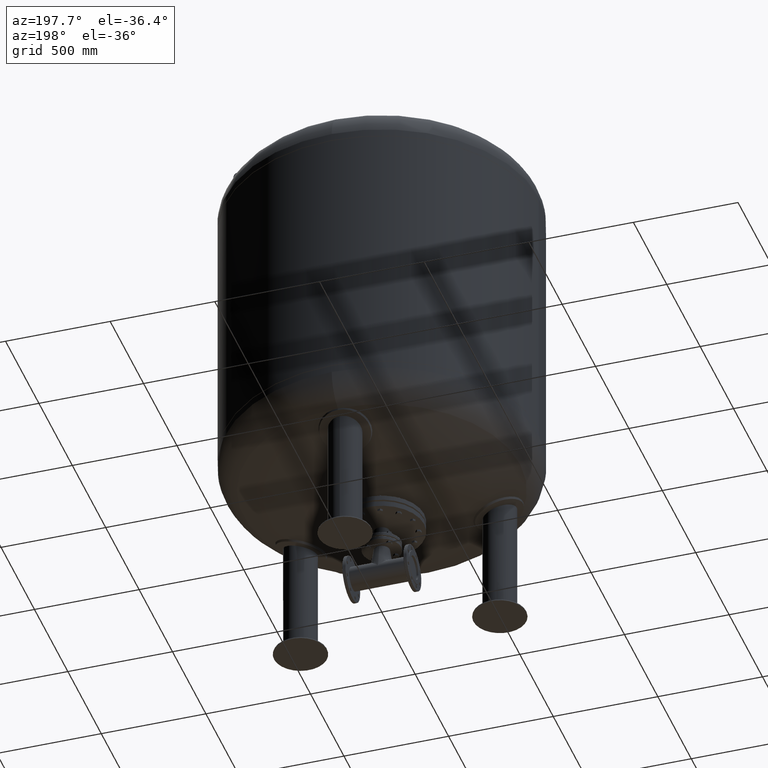
[diagram: clean part render]
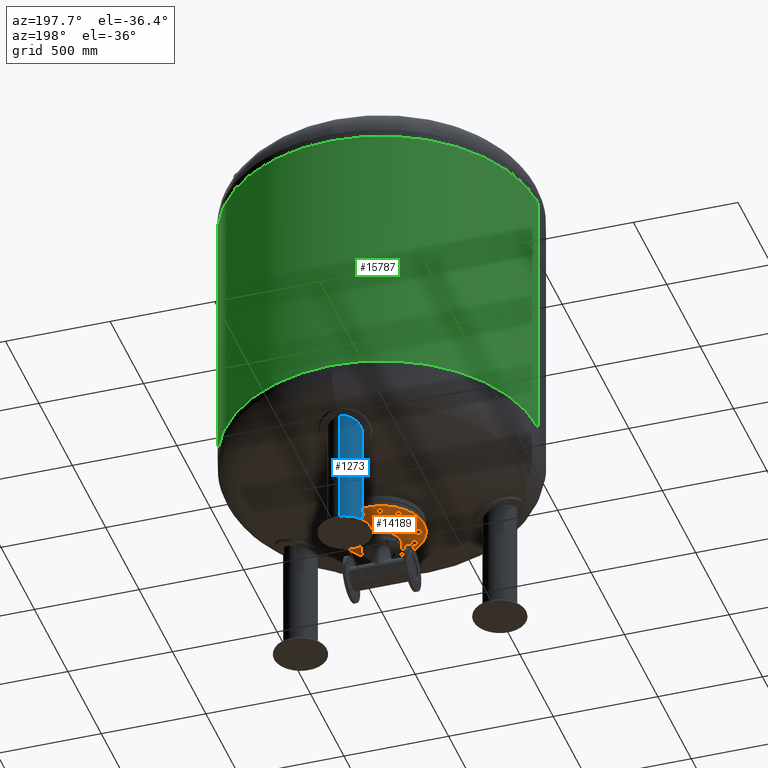
[diagram: same view with three faces highlighted in distinct colors, each labeled with its STEP entity id]
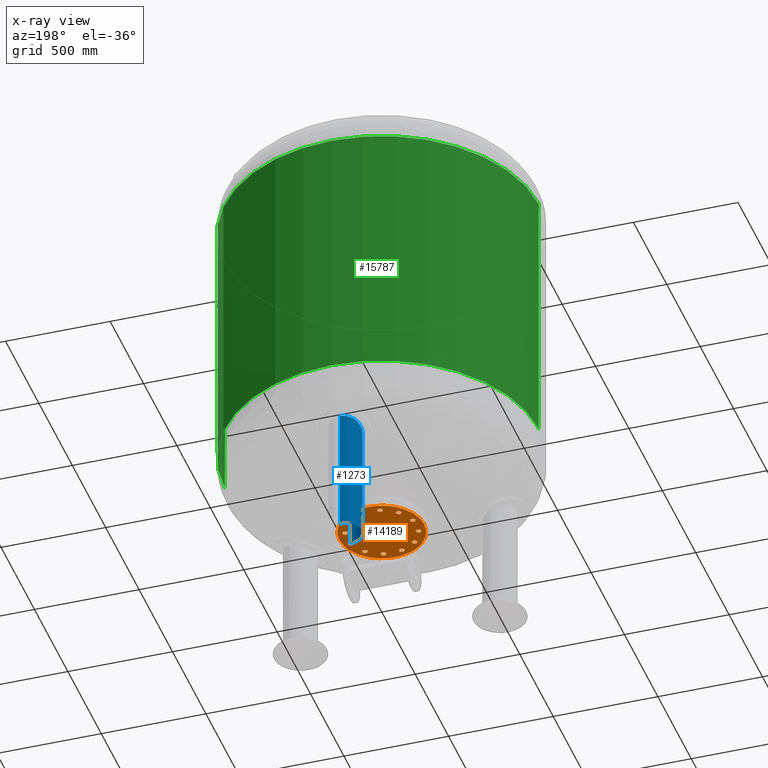
[diagram: x-ray of the same camera — body ghosted, the three highlighted faces saturated]
A machine part, auxiliary view with three faces highlighted in distinct colors.
The next image is the same camera in x-ray (body ghosted, the three faces saturated) — at least one of them is partly hidden behind the body in this view.
Their STEP definitions:

[orange] entity #14189 — the highlighted planar face has unit normal (0, 0, -1).
#5625=CARTESIAN_POINT('',(202.500000000000000,-9.184851E-015,406.0));
#5626=VERTEX_POINT('',#5625);
#5642=CARTESIAN_POINT('',(-202.500000000000000,-3.398313E-014,406.0));
#5643=VERTEX_POINT('',#5642);
#5650=CARTESIAN_POINT('',(0.0,-9.184851E-015,406.0));
#5651=DIRECTION('',(0.0,0.0,1.0));
#5652=DIRECTION('',(1.0,0.0,0.0));
#5653=AXIS2_PLACEMENT_3D('',#5650,#5651,#5652);
#5654=CIRCLE('',#5653,202.500000000000000);
#5655=EDGE_CURVE('',#5643,#5626,#5654,.T.);
#7605=CARTESIAN_POINT('',(0.0,38.049999999999990,406.0));
#7606=VERTEX_POINT('',#7605);
#7622=CARTESIAN_POINT('',(-4.659627E-015,-38.050000000000011,406.0));
#7623=VERTEX_POINT('',#7622);
#7630=CARTESIAN_POINT('',(0.0,-9.184851E-015,406.0));
#7631=DIRECTION('',(0.0,0.0,1.0));
#7632=DIRECTION('',(0.0,1.0,0.0));
#7633=AXIS2_PLACEMENT_3D('',#7630,#7631,#7632);
#7634=CIRCLE('',#7633,38.049999999999997);
#7635=EDGE_CURVE('',#7606,#7623,#7634,.T.);
#7646=CARTESIAN_POINT('',(0.0,-9.184851E-015,406.0));
#7647=DIRECTION('',(0.0,0.0,1.0));
#7648=DIRECTION('',(0.0,1.0,0.0));
#7649=AXIS2_PLACEMENT_3D('',#7646,#7647,#7648);
#7650=CIRCLE('',#7649,38.049999999999997);
#7651=EDGE_CURVE('',#7623,#7606,#7650,.T.);
#11679=CARTESIAN_POINT('',(-157.729139400922860,30.104983413641001,406.0));
#11680=VERTEX_POINT('',#11679);
#11681=CARTESIAN_POINT('',(-148.288440171855850,40.247625971983254,406.0));
#11682=VERTEX_POINT('',#11681);
#11683=CARTESIAN_POINT('',(-157.729139400922860,30.104983413641001,406.0));
#11684=DIRECTION('',(0.681323780155013,0.731982176419128,0.0));
#11685=VECTOR('',#11684,13.856406460551087);
#11686=LINE('',#11683,#11685);
#11687=EDGE_CURVE('',#11680,#11682,#11686,.T.);
#11719=CARTESIAN_POINT('',(-171.233275132485970,33.209547496330096,406.0));
#11720=VERTEX_POINT('',#11719);
#11721=CARTESIAN_POINT('',(-171.233275132485970,33.209547496330096,406.0));
#11722=DIRECTION('',(0.974577049973894,-0.224052613607122,0.0));
#11723=VECTOR('',#11722,13.856406460551117);
#11724=LINE('',#11721,#11723);
#11725=EDGE_CURVE('',#11720,#11680,#11724,.T.);
#11750=CARTESIAN_POINT('',(-175.296711634982050,46.456754137361408,406.0));
#11751=VERTEX_POINT('',#11750);
#11752=CARTESIAN_POINT('',(-175.296711634982050,46.456754137361408,406.0));
#11753=DIRECTION('',(0.293253269818881,-0.956034790026249,0.0));
#11754=VECTOR('',#11753,13.856406460551076);
#11755=LINE('',#11752,#11754);
#11756=EDGE_CURVE('',#11751,#11720,#11755,.T.);
#11781=CARTESIAN_POINT('',(-152.351876674351930,53.494832613014573,406.0));
#11782=VERTEX_POINT('',#11781);
#11783=CARTESIAN_POINT('',(-148.288440171855850,40.247625971983254,406.0));
#11784=DIRECTION('',(-0.293253269818881,0.956034790026249,0.0));
#11785=VECTOR('',#11784,13.856406460551083);
#11786=LINE('',#11783,#11785);
#11787=EDGE_CURVE('',#11682,#11782,#11786,.T.);
#11812=CARTESIAN_POINT('',(-165.856012405915040,56.599396695703675,406.0));
#11813=VERTEX_POINT('',#11812);
#11814=CARTESIAN_POINT('',(-152.351876674351930,53.494832613014573,406.0));
#11815=DIRECTION('',(-0.974577049973894,0.224052613607123,0.0));
#11816=VECTOR('',#11815,13.856406460551119);
#11817=LINE('',#11814,#11816);
#11818=EDGE_CURVE('',#11782,#11813,#11817,.T.);
#11843=CARTESIAN_POINT('',(-165.856012405915040,56.599396695703675,406.0));
#11844=DIRECTION('',(-0.681323780155012,-0.731982176419129,0.0));
#11845=VECTOR('',#11844,13.856406460551096);
#11846=LINE('',#11843,#11845);
#11847=EDGE_CURVE('',#11813,#11751,#11846,.T.);
#11879=CARTESIAN_POINT('',(-121.544949931435720,104.936250117183760,406.0));
#11880=VERTEX_POINT('',#11879);
#11881=CARTESIAN_POINT('',(-108.297743290404380,108.999686619679820,406.0));
#11882=VERTEX_POINT('',#11881);
#11883=CARTESIAN_POINT('',(-121.544949931435720,104.936250117183760,406.0));
#11884=DIRECTION('',(0.956034790026250,0.293253269818880,0.0));
#11885=VECTOR('',#11884,13.856406460551101);
#11886=LINE('',#11883,#11885);
#11887=EDGE_CURVE('',#11880,#11882,#11886,.T.);
#11919=CARTESIAN_POINT('',(-131.687592489777960,114.376949346250780,406.0));
#11920=VERTEX_POINT('',#11919);
#11921=CARTESIAN_POINT('',(-131.687592489777960,114.376949346250780,406.0));
#11922=DIRECTION('',(0.731982176419127,-0.681323780155014,0.0));
#11923=VECTOR('',#11922,13.856406460551080);
#11924=LINE('',#11921,#11923);
#11925=EDGE_CURVE('',#11920,#11880,#11924,.T.);
#11950=CARTESIAN_POINT('',(-128.583028407088880,127.881085077813880,406.0));
#11951=VERTEX_POINT('',#11950);
#11952=CARTESIAN_POINT('',(-128.583028407088880,127.881085077813880,406.0));
#11953=DIRECTION('',(-0.224052613607122,-0.974577049973894,0.0));
#11954=VECTOR('',#11953,13.856406460551099);
#11955=LINE('',#11952,#11954);
#11956=EDGE_CURVE('',#11951,#11920,#11955,.T.);
#11981=CARTESIAN_POINT('',(-105.193179207715300,122.503822351242900,406.0));
#11982=VERTEX_POINT('',#11981);
#11983=CARTESIAN_POINT('',(-108.297743290404380,108.999686619679820,406.0));
#11984=DIRECTION('',(0.224052613607122,0.974577049973894,0.0));
#11985=VECTOR('',#11984,13.856406460551087);
#11986=LINE('',#11983,#11985);
#11987=EDGE_CURVE('',#11882,#11982,#11986,.T.);
#12012=CARTESIAN_POINT('',(-115.335821766057560,131.944521580309950,406.0));
#12013=VERTEX_POINT('',#12012);
#12014=CARTESIAN_POINT('',(-105.193179207715300,122.503822351242900,406.0));
#12015=DIRECTION('',(-0.731982176419127,0.681323780155014,0.0));
#12016=VECTOR('',#12015,13.856406460551121);
#12017=LINE('',#12014,#12016);
#12018=EDGE_CURVE('',#11982,#12013,#12017,.T.);
#12043=CARTESIAN_POINT('',(-115.335821766057560,131.944521580309950,406.0));
#12044=DIRECTION('',(-0.956034790026249,-0.293253269818881,0.0));
#12045=VECTOR('',#12044,13.856406460551076);
#12046=LINE('',#12043,#12045);
#12047=EDGE_CURVE('',#12013,#11951,#12046,.T.);
#12079=CARTESIAN_POINT('',(-52.792889283739193,151.649933345076730,406.0));
#12080=VERTEX_POINT('',#12079);
#12081=CARTESIAN_POINT('',(-39.288753552176118,148.545369262387680,406.0));
#12082=VERTEX_POINT('',#12081);
#12083=CARTESIAN_POINT('',(-52.792889283739193,151.649933345076730,406.0));
#12084=DIRECTION('',(0.974577049973894,-0.224052613607120,0.0));
#12085=VECTOR('',#12084,13.856406460551073);
#12086=LINE('',#12083,#12085);
#12087=EDGE_CURVE('',#12080,#12082,#12086,.T.);
#12119=CARTESIAN_POINT('',(-56.856325786235274,164.897139986108100,406.0));
#12120=VERTEX_POINT('',#12119);
#12121=CARTESIAN_POINT('',(-56.856325786235274,164.897139986108100,406.0));
#12122=DIRECTION('',(0.293253269818881,-0.956034790026249,0.0));
#12123=VECTOR('',#12122,13.856406460551133);
#12124=LINE('',#12121,#12123);
#12125=EDGE_CURVE('',#12120,#12080,#12124,.T.);
#12150=CARTESIAN_POINT('',(-47.415626557168267,175.039782544450330,406.0));
#12151=VERTEX_POINT('',#12150);
#12152=CARTESIAN_POINT('',(-47.415626557168267,175.039782544450330,406.0));
#12153=DIRECTION('',(-0.681323780155014,-0.731982176419128,0.0));
#12154=VECTOR('',#12153,13.856406460551069);
#12155=LINE('',#12152,#12154);
#12156=EDGE_CURVE('',#12151,#12120,#12155,.T.);
#12181=CARTESIAN_POINT('',(-29.848054323109103,158.688011820729910,406.0));
#12182=VERTEX_POINT('',#12181);
#12183=CARTESIAN_POINT('',(-39.288753552176118,148.545369262387680,406.0));
#12184=DIRECTION('',(0.681323780155014,0.731982176419127,0.0));
#12185=VECTOR('',#12184,13.856406460551076);
#12186=LINE('',#12183,#12185);
#12187=EDGE_CURVE('',#12082,#12182,#12186,.T.);
#12212=CARTESIAN_POINT('',(-33.911490825605156,171.935218461761250,406.0));
#12213=VERTEX_POINT('',#12212);
#12214=CARTESIAN_POINT('',(-29.848054323109103,158.688011820729910,406.0));
#12215=DIRECTION('',(-0.293253269818879,0.956034790026250,0.0));
#12216=VECTOR('',#12215,13.856406460551097);
#12217=LINE('',#12214,#12216);
#12218=EDGE_CURVE('',#12182,#12213,#12217,.T.);
#12243=CARTESIAN_POINT('',(-33.911490825605156,171.935218461761250,406.0));
#12244=DIRECTION('',(-0.974577049973894,0.224052613607121,0.0));
#12245=VECTOR('',#12244,13.856406460551113);
#12246=LINE('',#12243,#12245);
#12247=EDGE_CURVE('',#12213,#12151,#12246,.T.);
#12279=CARTESIAN_POINT('',(30.104983413641008,157.729139400922860,406.0));
#12280=VERTEX_POINT('',#12279);
#12281=CARTESIAN_POINT('',(40.247625971983268,148.288440171855850,406.0));
#12282=VERTEX_POINT('',#12281);
#12283=CARTESIAN_POINT('',(30.104983413641008,157.729139400922860,406.0));
#12284=DIRECTION('',(0.731982176419128,-0.681323780155013,0.0));
#12285=VECTOR('',#12284,13.856406460551090);
#12286=LINE('',#12283,#12285);
#12287=EDGE_CURVE('',#12280,#12282,#12286,.T.);
#12319=CARTESIAN_POINT('',(33.209547496330110,171.233275132485970,406.0));
#12320=VERTEX_POINT('',#12319);
#12321=CARTESIAN_POINT('',(33.209547496330110,171.233275132485970,406.0));
#12322=DIRECTION('',(-0.224052613607123,-0.974577049973894,0.0));
#12323=VECTOR('',#12322,13.856406460551119);
#12324=LINE('',#12321,#12323);
#12325=EDGE_CURVE('',#12320,#12280,#12324,.T.);
#12350=CARTESIAN_POINT('',(46.456754137361422,175.296711634982050,406.0));
#12351=VERTEX_POINT('',#12350);
#12352=CARTESIAN_POINT('',(46.456754137361422,175.296711634982050,406.0));
#12353=DIRECTION('',(-0.956034790026249,-0.293253269818881,0.0));
#12354=VECTOR('',#12353,13.856406460551076);
#12355=LINE('',#12352,#12354);
#12356=EDGE_CURVE('',#12351,#12320,#12355,.T.);
#12381=CARTESIAN_POINT('',(53.494832613014587,152.351876674351930,406.0));
#12382=VERTEX_POINT('',#12381);
#12383=CARTESIAN_POINT('',(40.247625971983268,148.288440171855850,406.0));
#12384=DIRECTION('',(0.956034790026249,0.293253269818881,0.0));
#12385=VECTOR('',#12384,13.856406460551083);
#12386=LINE('',#12383,#12385);
#12387=EDGE_CURVE('',#12282,#12382,#12386,.T.);
#12412=CARTESIAN_POINT('',(56.599396695703689,165.856012405915040,406.0));
#12413=VERTEX_POINT('',#12412);
#12414=CARTESIAN_POINT('',(53.494832613014587,152.351876674351930,406.0));
#12415=DIRECTION('',(0.224052613607123,0.974577049973894,0.0));
#12416=VECTOR('',#12415,13.856406460551119);
#12417=LINE('',#12414,#12416);
#12418=EDGE_CURVE('',#12382,#12413,#12417,.T.);
#12443=CARTESIAN_POINT('',(56.599396695703689,165.856012405915040,406.0));
#12444=DIRECTION('',(-0.731982176419129,0.681323780155012,0.0));
#12445=VECTOR('',#12444,13.856406460551096);
#12446=LINE('',#12443,#12445);
#12447=EDGE_CURVE('',#12413,#12351,#12446,.T.);
#12479=CARTESIAN_POINT('',(104.936250117183700,121.544949931435750,406.0));
#12480=VERTEX_POINT('',#12479);
#12481=CARTESIAN_POINT('',(108.999686619679760,108.297743290404440,406.0));
#12482=VERTEX_POINT('',#12481);
#12483=CARTESIAN_POINT('',(104.936250117183700,121.544949931435750,406.0));
#12484=DIRECTION('',(0.293253269818880,-0.956034790026249,0.0));
#12485=VECTOR('',#12484,13.856406460551073);
#12486=LINE('',#12483,#12485);
#12487=EDGE_CURVE('',#12480,#12482,#12486,.T.);
#12519=CARTESIAN_POINT('',(114.376949346250730,131.687592489778010,406.0));
#12520=VERTEX_POINT('',#12519);
#12521=CARTESIAN_POINT('',(114.376949346250730,131.687592489778010,406.0));
#12522=DIRECTION('',(-0.681323780155013,-0.731982176419128,0.0));
#12523=VECTOR('',#12522,13.856406460551101);
#12524=LINE('',#12521,#12523);
#12525=EDGE_CURVE('',#12520,#12480,#12524,.T.);
#12550=CARTESIAN_POINT('',(127.881085077813810,128.583028407088930,406.0));
#12551=VERTEX_POINT('',#12550);
#12552=CARTESIAN_POINT('',(127.881085077813810,128.583028407088930,406.0));
#12553=DIRECTION('',(-0.974577049973894,0.224052613607122,0.0));
#12554=VECTOR('',#12553,13.856406460551087);
#12555=LINE('',#12552,#12554);
#12556=EDGE_CURVE('',#12551,#12520,#12555,.T.);
#12581=CARTESIAN_POINT('',(122.503822351242850,105.193179207715360,406.0));
#12582=VERTEX_POINT('',#12581);
#12583=CARTESIAN_POINT('',(108.999686619679760,108.297743290404440,406.0));
#12584=DIRECTION('',(0.974577049973894,-0.224052613607122,0.0));
#12585=VECTOR('',#12584,13.856406460551087);
#12586=LINE('',#12583,#12585);
#12587=EDGE_CURVE('',#12482,#12582,#12586,.T.);
#12612=CARTESIAN_POINT('',(131.944521580309900,115.335821766057620,406.0));
#12613=VERTEX_POINT('',#12612);
#12614=CARTESIAN_POINT('',(122.503822351242850,105.193179207715360,406.0));
#12615=DIRECTION('',(0.681323780155014,0.731982176419127,0.0));
#12616=VECTOR('',#12615,13.856406460551121);
#12617=LINE('',#12614,#12616);
#12618=EDGE_CURVE('',#12582,#12613,#12617,.T.);
#12643=CARTESIAN_POINT('',(131.944521580309900,115.335821766057620,406.0));
#12644=DIRECTION('',(-0.293253269818882,0.956034790026249,0.0));
#12645=VECTOR('',#12644,13.856406460551081);
#12646=LINE('',#12643,#12645);
#12647=EDGE_CURVE('',#12613,#12551,#12646,.T.);
#12679=CARTESIAN_POINT('',(151.649933345076730,52.792889283739200,406.0));
#12680=VERTEX_POINT('',#12679);
#12681=CARTESIAN_POINT('',(148.545369262387650,39.288753552176111,406.0));
#12682=VERTEX_POINT('',#12681);
#12683=CARTESIAN_POINT('',(151.649933345076730,52.792889283739200,406.0));
#12684=DIRECTION('',(-0.224052613607122,-0.974577049973894,0.0));
#12685=VECTOR('',#12684,13.856406460551092);
#12686=LINE('',#12683,#12685);
#12687=EDGE_CURVE('',#12680,#12682,#12686,.T.);
#12719=CARTESIAN_POINT('',(164.897139986108100,56.856325786235281,406.0));
#12720=VERTEX_POINT('',#12719);
#12721=CARTESIAN_POINT('',(164.897139986108100,56.856325786235281,406.0));
#12722=DIRECTION('',(-0.956034790026249,-0.293253269818881,0.0));
#12723=VECTOR('',#12722,13.856406460551133);
#12724=LINE('',#12721,#12723);
#12725=EDGE_CURVE('',#12720,#12680,#12724,.T.);
#12750=CARTESIAN_POINT('',(175.039782544450300,47.415626557168245,406.0));
#12751=VERTEX_POINT('',#12750);
#12752=CARTESIAN_POINT('',(175.039782544450300,47.415626557168245,406.0));
#12753=DIRECTION('',(-0.731982176419126,0.681323780155016,0.0));
#12754=VECTOR('',#12753,13.856406460551069);
#12755=LINE('',#12752,#12754);
#12756=EDGE_CURVE('',#12751,#12720,#12755,.T.);
#12781=CARTESIAN_POINT('',(158.688011820729910,29.848054323109103,406.0));
#12782=VERTEX_POINT('',#12781);
#12783=CARTESIAN_POINT('',(148.545369262387650,39.288753552176111,406.0));
#12784=DIRECTION('',(0.731982176419128,-0.681323780155013,0.0));
#12785=VECTOR('',#12784,13.856406460551090);
#12786=LINE('',#12783,#12785);
#12787=EDGE_CURVE('',#12682,#12782,#12786,.T.);
#12812=CARTESIAN_POINT('',(171.935218461761250,33.911490825605156,406.0));
#12813=VERTEX_POINT('',#12812);
#12814=CARTESIAN_POINT('',(158.688011820729910,29.848054323109103,406.0));
#12815=DIRECTION('',(0.956034790026250,0.293253269818879,0.0));
#12816=VECTOR('',#12815,13.856406460551097);
#12817=LINE('',#12814,#12816);
#12818=EDGE_CURVE('',#12782,#12813,#12817,.T.);
#12843=CARTESIAN_POINT('',(171.935218461761250,33.911490825605156,406.0));
#12844=DIRECTION('',(0.224052613607120,0.974577049973894,0.0));
#12845=VECTOR('',#12844,13.856406460551087);
#12846=LINE('',#12843,#12845);
#12847=EDGE_CURVE('',#12813,#12751,#12846,.T.);
#12879=CARTESIAN_POINT('',(157.729139400922860,-30.104983413640994,406.0));
#12880=VERTEX_POINT('',#12879);
#12881=CARTESIAN_POINT('',(148.288440171855850,-40.247625971983261,406.0));
#12882=VERTEX_POINT('',#12881);
#12883=CARTESIAN_POINT('',(157.729139400922860,-30.104983413640994,406.0));
#12884=DIRECTION('',(-0.681323780155012,-0.731982176419129,0.0));
#12885=VECTOR('',#12884,13.856406460551096);
#12886=LINE('',#12883,#12885);
#12887=EDGE_CURVE('',#12880,#12882,#12886,.T.);
#12919=CARTESIAN_POINT('',(171.233275132486000,-33.209547496330110,406.0));
#12920=VERTEX_POINT('',#12919);
#12921=CARTESIAN_POINT('',(171.233275132486000,-33.209547496330110,406.0));
#12922=DIRECTION('',(-0.974577049973894,0.224052613607123,0.0));
#12923=VECTOR('',#12922,13.856406460551149);
#12924=LINE('',#12921,#12923);
#12925=EDGE_CURVE('',#12920,#12880,#12924,.T.);
#12950=CARTESIAN_POINT('',(175.296711634982050,-46.456754137361415,406.0));
#12951=VERTEX_POINT('',#12950);
#12952=CARTESIAN_POINT('',(175.296711634982050,-46.456754137361415,406.0));
#12953=DIRECTION('',(-0.293253269818880,0.956034790026250,0.0));
#12954=VECTOR('',#12953,13.856406460551062);
#12955=LINE('',#12952,#12954);
#12956=EDGE_CURVE('',#12951,#12920,#12955,.T.);
#12981=CARTESIAN_POINT('',(152.351876674351960,-53.494832613014594,406.0));
#12982=VERTEX_POINT('',#12981);
#12983=CARTESIAN_POINT('',(148.288440171855850,-40.247625971983261,406.0));
#12984=DIRECTION('',(0.293253269818883,-0.956034790026249,0.0));
#12985=VECTOR('',#12984,13.856406460551106);
#12986=LINE('',#12983,#12985);
#12987=EDGE_CURVE('',#12882,#12982,#12986,.T.);
#13012=CARTESIAN_POINT('',(165.856012405915070,-56.599396695703660,406.0));
#13013=VERTEX_POINT('',#13012);
#13014=CARTESIAN_POINT('',(152.351876674351960,-53.494832613014594,406.0));
#13015=DIRECTION('',(0.974577049973894,-0.224052613607121,0.0));
#13016=VECTOR('',#13015,13.856406460551110);
#13017=LINE('',#13014,#13016);
#13018=EDGE_CURVE('',#12982,#13013,#13017,.T.);
#13043=CARTESIAN_POINT('',(165.856012405915070,-56.599396695703660,406.0));
#13044=DIRECTION('',(0.681323780155012,0.731982176419129,0.0));
#13045=VECTOR('',#13044,13.856406460551062);
#13046=LINE('',#13043,#13045);
#13047=EDGE_CURVE('',#13013,#12951,#13046,.T.);
#13079=CARTESIAN_POINT('',(121.544949931435750,-104.936250117183680,406.0));
#13080=VERTEX_POINT('',#13079);
#13081=CARTESIAN_POINT('',(108.297743290404440,-108.999686619679760,406.0));
#13082=VERTEX_POINT('',#13081);
#13083=CARTESIAN_POINT('',(121.544949931435750,-104.936250117183680,406.0));
#13084=DIRECTION('',(-0.956034790026249,-0.293253269818882,0.0));
#13085=VECTOR('',#13084,13.856406460551081);
#13086=LINE('',#13083,#13085);
#13087=EDGE_CURVE('',#13080,#13082,#13086,.T.);
#13119=CARTESIAN_POINT('',(131.687592489778010,-114.376949346250730,406.0));
#13120=VERTEX_POINT('',#13119);
#13121=CARTESIAN_POINT('',(131.687592489778010,-114.376949346250730,406.0));
#13122=DIRECTION('',(-0.731982176419127,0.681323780155014,0.0));
#13123=VECTOR('',#13122,13.856406460551121);
#13124=LINE('',#13121,#13123);
#13125=EDGE_CURVE('',#13120,#13080,#13124,.T.);
#13150=CARTESIAN_POINT('',(128.583028407088930,-127.881085077813790,406.0));
#13151=VERTEX_POINT('',#13150);
#13152=CARTESIAN_POINT('',(128.583028407088930,-127.881085077813790,406.0));
#13153=DIRECTION('',(0.224052613607122,0.974577049973894,0.0));
#13154=VECTOR('',#13153,13.856406460551071);
#13155=LINE('',#13152,#13154);
#13156=EDGE_CURVE('',#13151,#13120,#13155,.T.);
#13181=CARTESIAN_POINT('',(105.193179207715360,-122.503822351242850,406.0));
#13182=VERTEX_POINT('',#13181);
#13183=CARTESIAN_POINT('',(108.297743290404440,-108.999686619679760,406.0));
#13184=DIRECTION('',(-0.224052613607122,-0.974577049973894,0.0));
#13185=VECTOR('',#13184,13.856406460551087);
#13186=LINE('',#13183,#13185);
#13187=EDGE_CURVE('',#13082,#13182,#13186,.T.);
#13212=CARTESIAN_POINT('',(115.335821766057620,-131.944521580309900,406.0));
#13213=VERTEX_POINT('',#13212);
#13214=CARTESIAN_POINT('',(105.193179207715360,-122.503822351242850,406.0));
#13215=DIRECTION('',(0.731982176419127,-0.681323780155014,0.0));
#13216=VECTOR('',#13215,13.856406460551121);
#13217=LINE('',#13214,#13216);
#13218=EDGE_CURVE('',#13182,#13213,#13217,.T.);
#13243=CARTESIAN_POINT('',(115.335821766057620,-131.944521580309900,406.0));
#13244=DIRECTION('',(0.956034790026249,0.293253269818883,0.0));
#13245=VECTOR('',#13244,13.856406460551085);
#13246=LINE('',#13243,#13245);
#13247=EDGE_CURVE('',#13213,#13151,#13246,.T.);
#13279=CARTESIAN_POINT('',(52.792889283739228,-151.649933345076730,406.0));
#13280=VERTEX_POINT('',#13279);
#13281=CARTESIAN_POINT('',(39.288753552176132,-148.545369262387680,406.0));
#13282=VERTEX_POINT('',#13281);
#13283=CARTESIAN_POINT('',(52.792889283739228,-151.649933345076730,406.0));
#13284=DIRECTION('',(-0.974577049973894,0.224052613607120,0.0));
#13285=VECTOR('',#13284,13.856406460551094);
#13286=LINE('',#13283,#13285);
#13287=EDGE_CURVE('',#13280,#13282,#13286,.T.);
#13319=CARTESIAN_POINT('',(56.856325786235296,-164.897139986108100,406.0));
#13320=VERTEX_POINT('',#13319);
#13321=CARTESIAN_POINT('',(56.856325786235296,-164.897139986108100,406.0));
#13322=DIRECTION('',(-0.293253269818880,0.956034790026250,0.0));
#13323=VECTOR('',#13322,13.856406460551129);
#13324=LINE('',#13321,#13323);
#13325=EDGE_CURVE('',#13320,#13280,#13324,.T.);
#13350=CARTESIAN_POINT('',(47.415626557168281,-175.039782544450300,406.0));
#13351=VERTEX_POINT('',#13350);
#13352=CARTESIAN_POINT('',(47.415626557168281,-175.039782544450300,406.0));
#13353=DIRECTION('',(0.681323780155015,0.731982176419126,0.0));
#13354=VECTOR('',#13353,13.856406460551055);
#13355=LINE('',#13352,#13354);
#13356=EDGE_CURVE('',#13351,#13320,#13355,.T.);
#13381=CARTESIAN_POINT('',(29.848054323109121,-158.688011820729910,406.0));
#13382=VERTEX_POINT('',#13381);
#13383=CARTESIAN_POINT('',(39.288753552176132,-148.545369262387680,406.0));
#13384=DIRECTION('',(-0.681323780155014,-0.731982176419127,0.0));
#13385=VECTOR('',#13384,13.856406460551073);
#13386=LINE('',#13383,#13385);
#13387=EDGE_CURVE('',#13282,#13382,#13386,.T.);
#13412=CARTESIAN_POINT('',(33.911490825605199,-171.935218461761280,406.0));
#13413=VERTEX_POINT('',#13412);
#13414=CARTESIAN_POINT('',(29.848054323109121,-158.688011820729910,406.0));
#13415=DIRECTION('',(0.293253269818880,-0.956034790026249,0.0));
#13416=VECTOR('',#13415,13.856406460551133);
#13417=LINE('',#13414,#13416);
#13418=EDGE_CURVE('',#13382,#13413,#13417,.T.);
#13443=CARTESIAN_POINT('',(33.911490825605199,-171.935218461761280,406.0));
#13444=DIRECTION('',(0.974577049973895,-0.224052613607118,0.0));
#13445=VECTOR('',#13444,13.856406460551074);
#13446=LINE('',#13443,#13445);
#13447=EDGE_CURVE('',#13413,#13351,#13446,.T.);
#13479=CARTESIAN_POINT('',(-30.104983413640952,-157.729139400922890,406.0));
#13480=VERTEX_POINT('',#13479);
#13481=CARTESIAN_POINT('',(-40.247625971983211,-148.288440171855880,406.0));
#13482=VERTEX_POINT('',#13481);
#13483=CARTESIAN_POINT('',(-30.104983413640952,-157.729139400922890,406.0));
#13484=DIRECTION('',(-0.731982176419128,0.681323780155013,0.0));
#13485=VECTOR('',#13484,13.856406460551090);
#13486=LINE('',#13483,#13485);
#13487=EDGE_CURVE('',#13480,#13482,#13486,.T.);
#13519=CARTESIAN_POINT('',(-33.209547496330039,-171.233275132486000,406.0));
#13520=VERTEX_POINT('',#13519);
#13521=CARTESIAN_POINT('',(-33.209547496330039,-171.233275132486000,406.0));
#13522=DIRECTION('',(0.224052613607122,0.974577049973894,0.0));
#13523=VECTOR('',#13522,13.856406460551115);
#13524=LINE('',#13521,#13523);
#13525=EDGE_CURVE('',#13520,#13480,#13524,.T.);
#13550=CARTESIAN_POINT('',(-46.456754137361351,-175.296711634982070,406.0));
#13551=VERTEX_POINT('',#13550);
#13552=CARTESIAN_POINT('',(-46.456754137361351,-175.296711634982070,406.0));
#13553=DIRECTION('',(0.956034790026249,0.293253269818881,0.0));
#13554=VECTOR('',#13553,13.856406460551076);
#13555=LINE('',#13552,#13554);
#13556=EDGE_CURVE('',#13551,#13520,#13555,.T.);
#13581=CARTESIAN_POINT('',(-53.494832613014523,-152.351876674351960,406.0));
#13582=VERTEX_POINT('',#13581);
#13583=CARTESIAN_POINT('',(-40.247625971983211,-148.288440171855880,406.0));
#13584=DIRECTION('',(-0.956034790026249,-0.293253269818881,0.0));
#13585=VECTOR('',#13584,13.856406460551076);
#13586=LINE('',#13583,#13585);
#13587=EDGE_CURVE('',#13482,#13582,#13586,.T.);
#13612=CARTESIAN_POINT('',(-56.599396695703625,-165.856012405915070,406.0));
#13613=VERTEX_POINT('',#13612);
#13614=CARTESIAN_POINT('',(-53.494832613014523,-152.351876674351960,406.0));
#13615=DIRECTION('',(-0.224052613607123,-0.974577049973894,0.0));
#13616=VECTOR('',#13615,13.856406460551119);
#13617=LINE('',#13614,#13616);
#13618=EDGE_CURVE('',#13582,#13613,#13617,.T.);
#13643=CARTESIAN_POINT('',(-56.599396695703625,-165.856012405915070,406.0));
#13644=DIRECTION('',(0.731982176419129,-0.681323780155012,0.0));
#13645=VECTOR('',#13644,13.856406460551101);
#13646=LINE('',#13643,#13645);
#13647=EDGE_CURVE('',#13613,#13551,#13646,.T.);
#13679=CARTESIAN_POINT('',(-104.936250117183660,-121.544949931435800,406.0));
#13680=VERTEX_POINT('',#13679);
#13681=CARTESIAN_POINT('',(-108.999686619679750,-108.297743290404470,406.0));
#13682=VERTEX_POINT('',#13681);
#13683=CARTESIAN_POINT('',(-104.936250117183660,-121.544949931435800,406.0));
#13684=DIRECTION('',(-0.293253269818882,0.956034790026249,0.0));
#13685=VECTOR('',#13684,13.856406460551094);
#13686=LINE('',#13683,#13685);
#13687=EDGE_CURVE('',#13680,#13682,#13686,.T.);
#13719=CARTESIAN_POINT('',(-114.376949346250710,-131.687592489778040,406.0));
#13720=VERTEX_POINT('',#13719);
#13721=CARTESIAN_POINT('',(-114.376949346250710,-131.687592489778040,406.0));
#13722=DIRECTION('',(0.681323780155015,0.731982176419126,0.0));
#13723=VECTOR('',#13722,13.856406460551110);
#13724=LINE('',#13721,#13723);
#13725=EDGE_CURVE('',#13720,#13680,#13724,.T.);
#13750=CARTESIAN_POINT('',(-127.881085077813760,-128.583028407088960,406.0));
#13751=VERTEX_POINT('',#13750);
#13752=CARTESIAN_POINT('',(-127.881085077813760,-128.583028407088960,406.0));
#13753=DIRECTION('',(0.974577049973894,-0.224052613607122,0.0));
#13754=VECTOR('',#13753,13.856406460551058);
#13755=LINE('',#13752,#13754);
#13756=EDGE_CURVE('',#13751,#13720,#13755,.T.);
#13781=CARTESIAN_POINT('',(-122.503822351242830,-105.193179207715390,406.0));
#13782=VERTEX_POINT('',#13781);
#13783=CARTESIAN_POINT('',(-108.999686619679750,-108.297743290404470,406.0));
#13784=DIRECTION('',(-0.974577049973894,0.224052613607122,0.0));
#13785=VECTOR('',#13784,13.856406460551087);
#13786=LINE('',#13783,#13785);
#13787=EDGE_CURVE('',#13682,#13782,#13786,.T.);
#13812=CARTESIAN_POINT('',(-131.944521580309870,-115.335821766057650,406.0));
#13813=VERTEX_POINT('',#13812);
#13814=CARTESIAN_POINT('',(-122.503822351242830,-105.193179207715390,406.0));
#13815=DIRECTION('',(-0.681323780155014,-0.731982176419127,0.0));
#13816=VECTOR('',#13815,13.856406460551110);
#13817=LINE('',#13814,#13816);
#13818=EDGE_CURVE('',#13782,#13813,#13817,.T.);
#13843=CARTESIAN_POINT('',(-131.944521580309870,-115.335821766057650,406.0));
#13844=DIRECTION('',(0.293253269818883,-0.956034790026249,0.0));
#13845=VECTOR('',#13844,13.856406460551085);
#13846=LINE('',#13843,#13845);
#13847=EDGE_CURVE('',#13813,#13751,#13846,.T.);
#13879=CARTESIAN_POINT('',(-151.649933345076730,-52.792889283739243,406.0));
#13880=VERTEX_POINT('',#13879);
#13881=CARTESIAN_POINT('',(-148.545369262387650,-39.288753552176154,406.0));
#13882=VERTEX_POINT('',#13881);
#13883=CARTESIAN_POINT('',(-151.649933345076730,-52.792889283739243,406.0));
#13884=DIRECTION('',(0.224052613607122,0.974577049973894,0.0));
#13885=VECTOR('',#13884,13.856406460551092);
#13886=LINE('',#13883,#13885);
#13887=EDGE_CURVE('',#13880,#13882,#13886,.T.);
#13919=CARTESIAN_POINT('',(-164.897139986108070,-56.856325786235317,406.0));
#13920=VERTEX_POINT('',#13919);
#13921=CARTESIAN_POINT('',(-164.897139986108070,-56.856325786235317,406.0));
#13922=DIRECTION('',(0.956034790026249,0.293253269818881,0.0));
#13923=VECTOR('',#13922,13.856406460551105);
#13924=LINE('',#13921,#13923);
#13925=EDGE_CURVE('',#13920,#13880,#13924,.T.);
#13950=CARTESIAN_POINT('',(-175.039782544450300,-47.415626557168309,406.0));
#13951=VERTEX_POINT('',#13950);
#13952=CARTESIAN_POINT('',(-175.039782544450300,-47.415626557168309,406.0));
#13953=DIRECTION('',(0.731982176419128,-0.681323780155014,0.0));
#13954=VECTOR('',#13953,13.856406460551069);
#13955=LINE('',#13952,#13954);
#13956=EDGE_CURVE('',#13951,#13920,#13955,.T.);
#13981=CARTESIAN_POINT('',(-158.688011820729910,-29.848054323109139,406.0));
#13982=VERTEX_POINT('',#13981);
#13983=CARTESIAN_POINT('',(-148.545369262387650,-39.288753552176154,406.0));
#13984=DIRECTION('',(-0.731982176419128,0.681323780155013,0.0));
#13985=VECTOR('',#13984,13.856406460551096);
#13986=LINE('',#13983,#13985);
#13987=EDGE_CURVE('',#13882,#13982,#13986,.T.);
#14012=CARTESIAN_POINT('',(-171.935218461761250,-33.911490825605220,406.0));
#14013=VERTEX_POINT('',#14012);
#14014=CARTESIAN_POINT('',(-158.688011820729910,-29.848054323109139,406.0));
#14015=DIRECTION('',(-0.956034790026249,-0.293253269818881,0.0));
#14016=VECTOR('',#14015,13.856406460551106);
#14017=LINE('',#14014,#14016);
#14018=EDGE_CURVE('',#13982,#14013,#14017,.T.);
#14043=CARTESIAN_POINT('',(-171.935218461761250,-33.911490825605220,406.0));
#14044=DIRECTION('',(-0.224052613607120,-0.974577049973894,0.0));
#14045=VECTOR('',#14044,13.856406460551087);
#14046=LINE('',#14043,#14045);
#14047=EDGE_CURVE('',#14013,#13951,#14046,.T.);
#14074=CARTESIAN_POINT('',(101.250000000000000,-9.184851E-015,406.0));
#14075=DIRECTION('',(0.0,0.0,-1.0));
#14076=DIRECTION('',(0.0,1.0,0.0));
#14077=AXIS2_PLACEMENT_3D('',#14074,#14075,#14076);
#14078=PLANE('',#14077);
#14079=CARTESIAN_POINT('',(0.0,-9.184851E-015,406.0));
#14080=DIRECTION('',(0.0,0.0,1.0));
#14081=DIRECTION('',(1.0,0.0,0.0));
#14082=AXIS2_PLACEMENT_3D('',#14079,#14080,#14081);
#14083=CIRCLE('',#14082,202.500000000000000);
#14084=EDGE_CURVE('',#5626,#5643,#14083,.T.);
#14085=ORIENTED_EDGE('',*,*,#14084,.F.);
#14086=ORIENTED_EDGE('',*,*,#5655,.F.);
#14087=EDGE_LOOP('',(#14085,#14086));
#14088=FACE_OUTER_BOUND('',#14087,.T.);
#14089=ORIENTED_EDGE('',*,*,#7635,.T.);
#14090=ORIENTED_EDGE('',*,*,#7651,.T.);
#14091=EDGE_LOOP('',(#14089,#14090));
#14092=FACE_BOUND('',#14091,.T.);
#14093=ORIENTED_EDGE('',*,*,#11687,.T.);
#14094=ORIENTED_EDGE('',*,*,#11787,.T.);
#14095=ORIENTED_EDGE('',*,*,#11818,.T.);
#14096=ORIENTED_EDGE('',*,*,#11847,.T.);
#14097=ORIENTED_EDGE('',*,*,#11756,.T.);
#14098=ORIENTED_EDGE('',*,*,#11725,.T.);
#14099=EDGE_LOOP('',(#14093,#14094,#14095,#14096,#14097,#14098));
#14100=FACE_BOUND('',#14099,.T.);
#14101=ORIENTED_EDGE('',*,*,#11887,.T.);
#14102=ORIENTED_EDGE('',*,*,#11987,.T.);
#14103=ORIENTED_EDGE('',*,*,#12018,.T.);
#14104=ORIENTED_EDGE('',*,*,#12047,.T.);
#14105=ORIENTED_EDGE('',*,*,#11956,.T.);
#14106=ORIENTED_EDGE('',*,*,#11925,.T.);
#14107=EDGE_LOOP('',(#14101,#14102,#14103,#14104,#14105,#14106));
#14108=FACE_BOUND('',#14107,.T.);
#14109=ORIENTED_EDGE('',*,*,#12087,.T.);
#14110=ORIENTED_EDGE('',*,*,#12187,.T.);
#14111=ORIENTED_EDGE('',*,*,#12218,.T.);
#14112=ORIENTED_EDGE('',*,*,#12247,.T.);
#14113=ORIENTED_EDGE('',*,*,#12156,.T.);
#14114=ORIENTED_EDGE('',*,*,#12125,.T.);
#14115=EDGE_LOOP('',(#14109,#14110,#14111,#14112,#14113,#14114));
#14116=FACE_BOUND('',#14115,.T.);
#14117=ORIENTED_EDGE('',*,*,#12287,.T.);
#14118=ORIENTED_EDGE('',*,*,#12387,.T.);
#14119=ORIENTED_EDGE('',*,*,#12418,.T.);
#14120=ORIENTED_EDGE('',*,*,#12447,.T.);
#14121=ORIENTED_EDGE('',*,*,#12356,.T.);
#14122=ORIENTED_EDGE('',*,*,#12325,.T.);
#14123=EDGE_LOOP('',(#14117,#14118,#14119,#14120,#14121,#14122));
#14124=FACE_BOUND('',#14123,.T.);
#14125=ORIENTED_EDGE('',*,*,#12487,.T.);
#14126=ORIENTED_EDGE('',*,*,#12587,.T.);
#14127=ORIENTED_EDGE('',*,*,#12618,.T.);
#14128=ORIENTED_EDGE('',*,*,#12647,.T.);
#14129=ORIENTED_EDGE('',*,*,#12556,.T.);
#14130=ORIENTED_EDGE('',*,*,#12525,.T.);
#14131=EDGE_LOOP('',(#14125,#14126,#14127,#14128,#14129,#14130));
#14132=FACE_BOUND('',#14131,.T.);
#14133=ORIENTED_EDGE('',*,*,#12687,.T.);
#14134=ORIENTED_EDGE('',*,*,#12787,.T.);
#14135=ORIENTED_EDGE('',*,*,#12818,.T.);
#14136=ORIENTED_EDGE('',*,*,#12847,.T.);
#14137=ORIENTED_EDGE('',*,*,#12756,.T.);
#14138=ORIENTED_EDGE('',*,*,#12725,.T.);
#14139=EDGE_LOOP('',(#14133,#14134,#14135,#14136,#14137,#14138));
#14140=FACE_BOUND('',#14139,.T.);
#14141=ORIENTED_EDGE('',*,*,#12887,.T.);
#14142=ORIENTED_EDGE('',*,*,#12987,.T.);
#14143=ORIENTED_EDGE('',*,*,#13018,.T.);
#14144=ORIENTED_EDGE('',*,*,#13047,.T.);
#14145=ORIENTED_EDGE('',*,*,#12956,.T.);
#14146=ORIENTED_EDGE('',*,*,#12925,.T.);
#14147=EDGE_LOOP('',(#14141,#14142,#14143,#14144,#14145,#14146));
#14148=FACE_BOUND('',#14147,.T.);
#14149=ORIENTED_EDGE('',*,*,#13087,.T.);
#14150=ORIENTED_EDGE('',*,*,#13187,.T.);
#14151=ORIENTED_EDGE('',*,*,#13218,.T.);
#14152=ORIENTED_EDGE('',*,*,#13247,.T.);
#14153=ORIENTED_EDGE('',*,*,#13156,.T.);
#14154=ORIENTED_EDGE('',*,*,#13125,.T.);
#14155=EDGE_LOOP('',(#14149,#14150,#14151,#14152,#14153,#14154));
#14156=FACE_BOUND('',#14155,.T.);
#14157=ORIENTED_EDGE('',*,*,#13287,.T.);
#14158=ORIENTED_EDGE('',*,*,#13387,.T.);
#14159=ORIENTED_EDGE('',*,*,#13418,.T.);
#14160=ORIENTED_EDGE('',*,*,#13447,.T.);
#14161=ORIENTED_EDGE('',*,*,#13356,.T.);
#14162=ORIENTED_EDGE('',*,*,#13325,.T.);
#14163=EDGE_LOOP('',(#14157,#14158,#14159,#14160,#14161,#14162));
#14164=FACE_BOUND('',#14163,.T.);
#14165=ORIENTED_EDGE('',*,*,#13487,.T.);
#14166=ORIENTED_EDGE('',*,*,#13587,.T.);
#14167=ORIENTED_EDGE('',*,*,#13618,.T.);
#14168=ORIENTED_EDGE('',*,*,#13647,.T.);
#14169=ORIENTED_EDGE('',*,*,#13556,.T.);
#14170=ORIENTED_EDGE('',*,*,#13525,.T.);
#14171=EDGE_LOOP('',(#14165,#14166,#14167,#14168,#14169,#14170));
#14172=FACE_BOUND('',#14171,.T.);
#14173=ORIENTED_EDGE('',*,*,#13687,.T.);
#14174=ORIENTED_EDGE('',*,*,#13787,.T.);
#14175=ORIENTED_EDGE('',*,*,#13818,.T.);
#14176=ORIENTED_EDGE('',*,*,#13847,.T.);
#14177=ORIENTED_EDGE('',*,*,#13756,.T.);
#14178=ORIENTED_EDGE('',*,*,#13725,.T.);
#14179=EDGE_LOOP('',(#14173,#14174,#14175,#14176,#14177,#14178));
#14180=FACE_BOUND('',#14179,.T.);
#14181=ORIENTED_EDGE('',*,*,#13887,.T.);
#14182=ORIENTED_EDGE('',*,*,#13987,.T.);
#14183=ORIENTED_EDGE('',*,*,#14018,.T.);
#14184=ORIENTED_EDGE('',*,*,#14047,.T.);
#14185=ORIENTED_EDGE('',*,*,#13956,.T.);
#14186=ORIENTED_EDGE('',*,*,#13925,.T.);
#14187=EDGE_LOOP('',(#14181,#14182,#14183,#14184,#14185,#14186));
#14188=FACE_BOUND('',#14187,.T.);
#14189=ADVANCED_FACE('',(#14088,#14092,#14100,#14108,#14116,#14124,#14132,#14140,#14148,#14156,#14164,#14172,#14180,#14188),#14078,.T.);

[blue] entity #1273 — the highlighted cylindrical surface (edge-blend (fillet) strip) has radius 79.5 mm, axis along (-0, 0, -1).
#1207=CARTESIAN_POINT('',(2.905276E-015,550.0,15.815585141290533));
#1208=DIRECTION('',(-1.836970E-016,1.124820E-032,-1.0));
#1209=DIRECTION('',(0.0,1.0,0.0));
#1210=AXIS2_PLACEMENT_3D('',#1207,#1208,#1209);
#1211=CYLINDRICAL_SURFACE('',#1210,79.500000000000000);
#1212=CARTESIAN_POINT('',(7.004582E-015,629.500000000000000,11.631170282581067));
#1213=VERTEX_POINT('',#1212);
#1214=CARTESIAN_POINT('',(1.187554E-013,629.500000000000680,619.974328976416250));
#1215=VERTEX_POINT('',#1214);
#1216=CARTESIAN_POINT('',(7.004582E-015,629.500000000000000,11.631170282581067));
#1217=DIRECTION('',(0.0,0.0,1.0));
#1218=VECTOR('',#1217,608.343158693835220);
#1219=LINE('',#1216,#1218);
#1220=EDGE_CURVE('',#1213,#1215,#1219,.T.);
#1221=ORIENTED_EDGE('',*,*,#1220,.F.);
#1222=CARTESIAN_POINT('',(-1.246698E-014,470.500000000000000,11.631170282581067));
#1223=VERTEX_POINT('',#1222);
#1224=CARTESIAN_POINT('',(2.136611E-015,550.0,11.631170282581067));
#1225=DIRECTION('',(0.0,0.0,-1.0));
#1226=DIRECTION('',(0.0,1.0,0.0));
#1227=AXIS2_PLACEMENT_3D('',#1224,#1225,#1226);
#1228=CIRCLE('',#1227,79.500000000000000);
#1229=EDGE_CURVE('',#1223,#1213,#1228,.T.);
#1230=ORIENTED_EDGE('',*,*,#1229,.F.);
#1231=CARTESIAN_POINT('',(8.113575E-014,470.500000000000000,557.801446445446690));
#1232=VERTEX_POINT('',#1231);
#1233=CARTESIAN_POINT('',(-1.246698E-014,470.500000000000000,11.631170282581067));
#1234=DIRECTION('',(0.0,0.0,1.0));
#1235=VECTOR('',#1234,546.170276162865660);
#1236=LINE('',#1233,#1235);
#1237=EDGE_CURVE('',#1223,#1232,#1236,.T.);
#1238=ORIENTED_EDGE('',*,*,#1237,.T.);
#1239=CARTESIAN_POINT('',(-79.496546794574527,549.259022444332230,588.259208461118420));
#1240=VERTEX_POINT('',#1239);
#1241=CARTESIAN_POINT('',(8.113575E-014,470.500000000000000,557.801446445446690));
#1242=CARTESIAN_POINT('',(-8.120663509625699,470.500000000000000,557.801446445446690));
#1243=CARTESIAN_POINT('',(-16.181797699724978,471.744255828588280,558.277369662588170));
#1244=CARTESIAN_POINT('',(-33.164619714983125,477.098435150620050,560.328261777430270));
#1245=CARTESIAN_POINT('',(-41.714366610406444,481.657352020981700,562.075596332598020));
#1246=CARTESIAN_POINT('',(-57.102984846283043,493.777642472443740,566.734659420112730));
#1247=CARTESIAN_POINT('',(-63.659291648246821,501.375090312636700,569.661195647944850));
#1248=CARTESIAN_POINT('',(-73.982822936199739,519.024244692127350,576.486089468713540));
#1249=CARTESIAN_POINT('',(-77.408940630037023,529.089375858457170,580.391859104990320));
#1250=CARTESIAN_POINT('',(-79.232830525971295,542.704310446537310,585.699021239809100));
#1251=CARTESIAN_POINT('',(-79.466003833415044,545.982189128008940,586.978453284904390));
#1252=CARTESIAN_POINT('',(-79.496546794574527,549.259022444332230,588.259208461118420));
#1253=B_SPLINE_CURVE_WITH_KNOTS('',3,(#1241,#1242,#1243,#1244,#1245,#1246,#1247,#1248,#1249,#1250,#1251,#1252),.UNSPECIFIED.,.F.,.U.,(4,2,2,2,2,4),(25.946274642103887,28.391196783303212,31.323094720106891,34.426409319311013,37.777807879739491,38.832927063684018),.UNSPECIFIED.);
#1254=EDGE_CURVE('',#1232,#1240,#1253,.T.);
#1255=ORIENTED_EDGE('',*,*,#1254,.T.);
#1256=CARTESIAN_POINT('',(-79.496546794574527,549.259022444332230,588.259208461118420));
#1257=CARTESIAN_POINT('',(-79.569013932907993,557.033734660012900,591.297966296070060));
#1258=CARTESIAN_POINT('',(-78.500805236188384,564.802503619152730,594.344322088061060));
#1259=CARTESIAN_POINT('',(-73.259584389779818,582.725585721040150,601.394273940897850));
#1260=CARTESIAN_POINT('',(-68.082238002880700,592.519115795239940,605.264897102246320));
#1261=CARTESIAN_POINT('',(-54.397367842830228,608.873445802111750,611.749699955350710));
#1262=CARTESIAN_POINT('',(-46.279319565829439,615.490667371996780,614.383971692484580));
#1263=CARTESIAN_POINT('',(-31.375414450366588,623.319741512061910,617.505471067215810));
#1264=CARTESIAN_POINT('',(-25.415018648142311,625.599309760025790,618.415766111970470));
#1265=CARTESIAN_POINT('',(-12.938638782510697,628.705585890656830,619.656658887407730));
#1266=CARTESIAN_POINT('',(-6.489221034626325,629.499999999999770,619.974328976416020));
#1267=CARTESIAN_POINT('',(1.134724E-013,629.499999999999770,619.974328976416020));
#1268=B_SPLINE_CURVE_WITH_KNOTS('',3,(#1256,#1257,#1258,#1259,#1260,#1261,#1262,#1263,#1264,#1265,#1266,#1267),.UNSPECIFIED.,.F.,.U.,(4,2,2,2,2,4),(38.832927063684018,41.336334230459492,44.806614551580793,48.013896662752792,49.941938919734973,51.888705230122902),.UNSPECIFIED.);
#1269=EDGE_CURVE('',#1240,#1215,#1268,.T.);
#1270=ORIENTED_EDGE('',*,*,#1269,.T.);
#1271=EDGE_LOOP('',(#1221,#1230,#1238,#1255,#1270));
#1272=FACE_OUTER_BOUND('',#1271,.T.);
#1273=ADVANCED_FACE('',(#1272),#1211,.T.);

[green] entity #15787 — the highlighted cylindrical surface (partial cylindrical patch) has radius 750 mm, axis along (0, 0, 1).
#15577=CARTESIAN_POINT('',(750.000000000000570,0.0,2093.0));
#15578=VERTEX_POINT('',#15577);
#15579=CARTESIAN_POINT('',(749.999999999999890,0.0,822.999999999999770));
#15580=VERTEX_POINT('',#15579);
#15581=CARTESIAN_POINT('',(750.000000000000570,0.0,2093.0));
#15582=DIRECTION('',(0.0,0.0,-1.0));
#15583=VECTOR('',#15582,1270.000000000000200);
#15584=LINE('',#15581,#15583);
#15585=EDGE_CURVE('',#15578,#15580,#15584,.T.);
#15587=CARTESIAN_POINT('',(-750.000000000000450,-9.184548E-014,2093.0));
#15588=VERTEX_POINT('',#15587);
#15596=CARTESIAN_POINT('',(-749.999999999999890,-9.184548E-014,822.999999999999770));
#15597=VERTEX_POINT('',#15596);
#15598=CARTESIAN_POINT('',(-750.000000000000450,-9.184548E-014,2093.0));
#15599=DIRECTION('',(0.0,0.0,-1.0));
#15600=VECTOR('',#15599,1270.000000000000200);
#15601=LINE('',#15598,#15600);
#15602=EDGE_CURVE('',#15588,#15597,#15601,.T.);
#15712=CARTESIAN_POINT('',(-1.660786E-014,0.0,822.999999999999770));
#15713=DIRECTION('',(0.0,0.0,1.0));
#15714=DIRECTION('',(1.0,0.0,0.0));
#15715=AXIS2_PLACEMENT_3D('',#15712,#15713,#15714);
#15716=CIRCLE('',#15715,749.999999999999890);
#15717=EDGE_CURVE('',#15580,#15597,#15716,.T.);
#15727=CARTESIAN_POINT('',(1.598721E-014,0.0,2093.0));
#15728=DIRECTION('',(0.0,0.0,1.0));
#15729=DIRECTION('',(1.0,0.0,0.0));
#15730=AXIS2_PLACEMENT_3D('',#15727,#15728,#15729);
#15731=CIRCLE('',#15730,750.000000000000570);
#15732=EDGE_CURVE('',#15578,#15588,#15731,.T.);
#15776=CARTESIAN_POINT('',(9.041626E-015,0.0,1782.0));
#15777=DIRECTION('',(2.670074E-017,0.0,1.0));
#15778=DIRECTION('',(1.0,0.0,0.0));
#15779=AXIS2_PLACEMENT_3D('',#15776,#15777,#15778);
#15780=CYLINDRICAL_SURFACE('',#15779,750.000000000000450);
#15781=ORIENTED_EDGE('',*,*,#15585,.T.);
#15782=ORIENTED_EDGE('',*,*,#15717,.T.);
#15783=ORIENTED_EDGE('',*,*,#15602,.F.);
#15784=ORIENTED_EDGE('',*,*,#15732,.F.);
#15785=EDGE_LOOP('',(#15781,#15782,#15783,#15784));
#15786=FACE_OUTER_BOUND('',#15785,.T.);
#15787=ADVANCED_FACE('',(#15786),#15780,.T.);